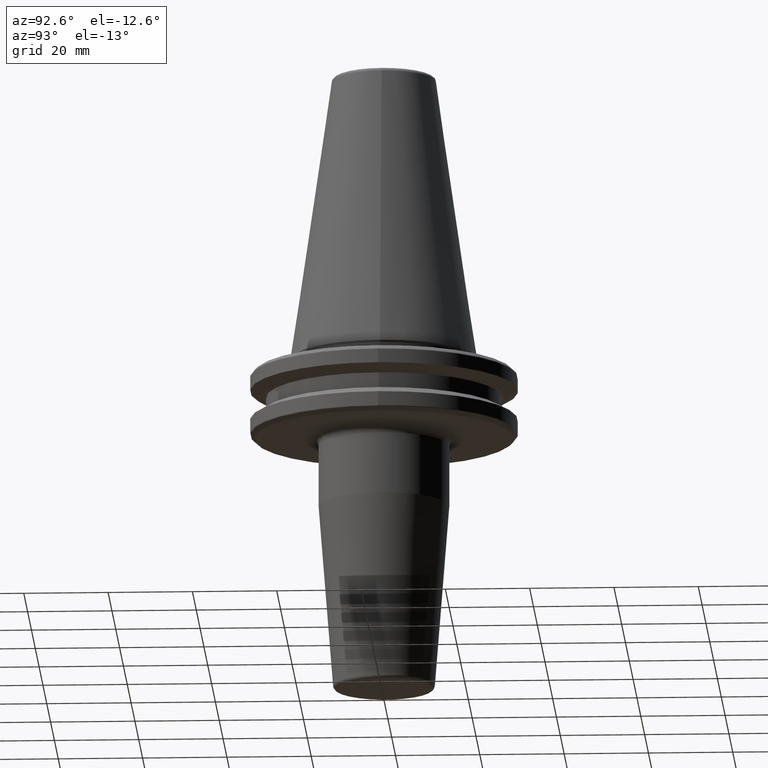
[diagram: clean part render]
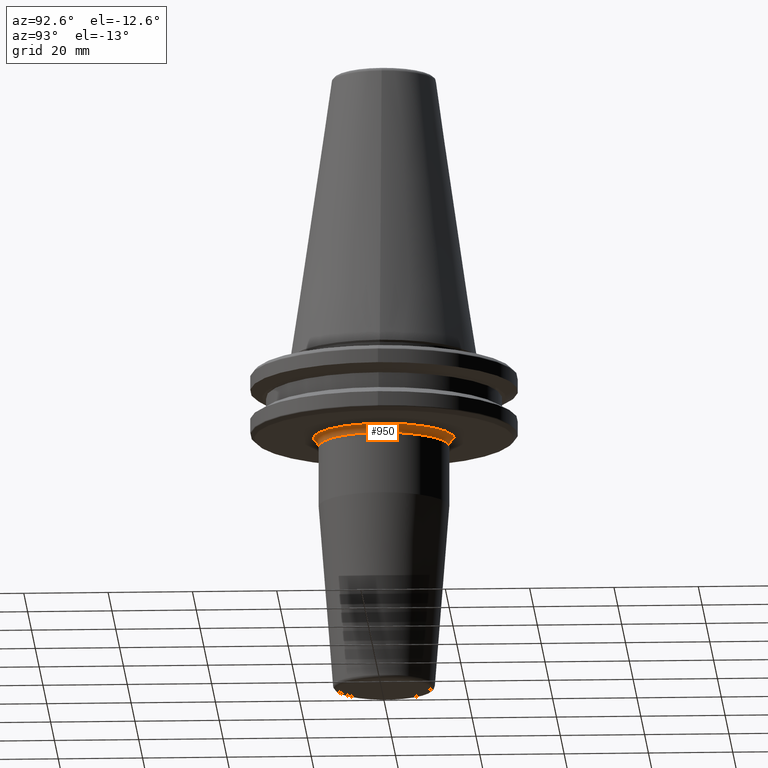
[diagram: same view with one face highlighted and labeled with its STEP entity id]
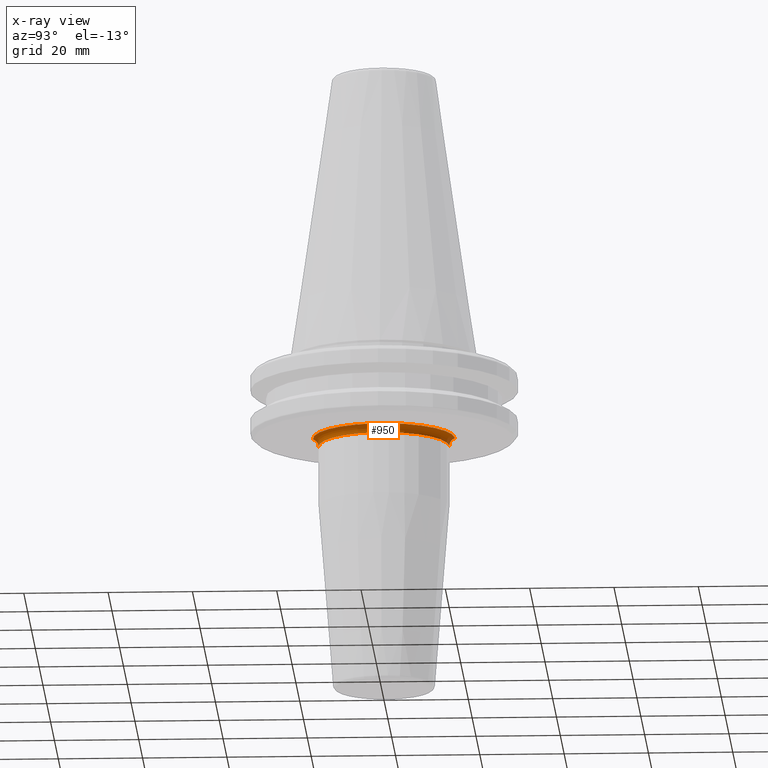
[diagram: x-ray of the same camera — body ghosted, the highlighted face saturated]
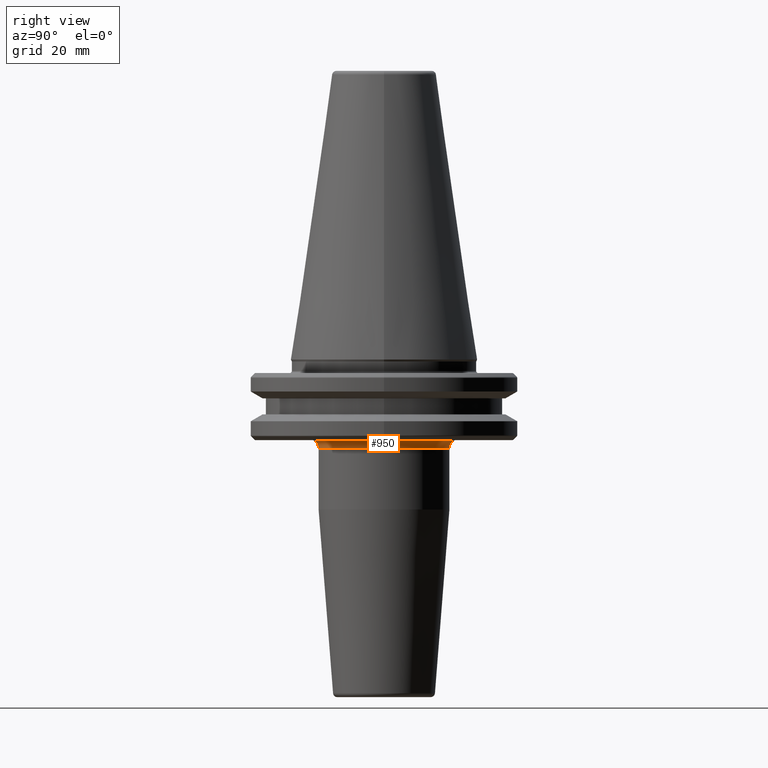
[diagram: same view with one face highlighted and labeled with its STEP entity id]
A machine part, auxiliary view. The second image highlights one B-rep face of the part: STEP entity #950.
The next image is the same camera in x-ray: the body ghosted, the highlighted face saturated — about 0% of this face is hidden behind the body in this view.
A second angle (right view) of the same face is appended — the face is thin or edge-on in the first view.
In plain terms, the highlighted toroidal blend (fillet) surface has major radius 17.5 mm and minor (blend) radius 2 mm.
Its self-contained STEP definition (entity closure, byte-faithful):
#28 = DIRECTION ( 'NONE',  ( -1.224646799147353500E-016, 1.000000000000000000, 0.0000000000000000000 ) ) ;
#50 = DIRECTION ( 'NONE',  ( 1.000000000000000000, 0.0000000000000000000, 0.0000000000000000000 ) ) ;
#67 = ORIENTED_EDGE ( 'NONE', *, *, #995, .T. ) ;
#71 = AXIS2_PLACEMENT_3D ( 'NONE', #1140, #864, #28 ) ;
#72 = ORIENTED_EDGE ( 'NONE', *, *, #781, .F. ) ;
#84 = CIRCLE ( 'NONE', #71, 2.000000000000001800 ) ;
#96 = AXIS2_PLACEMENT_3D ( 'NONE', #125, #805, #232 ) ;
#125 = CARTESIAN_POINT ( 'NONE',  ( 0.0000000000000000000, 17.50000000000000000, -20.98284271247461100 ) ) ;
#129 = EDGE_CURVE ( 'NONE', #168, #1122, #571, .T. ) ;
#168 = VERTEX_POINT ( 'NONE', #323 ) ;
#199 = DIRECTION ( 'NONE',  ( -0.0000000000000000000, 2.829168385244881300E-016, -1.000000000000000000 ) ) ;
#216 = CARTESIAN_POINT ( 'NONE',  ( 0.0000000000000000000, -1.670378735265370500E-014, -20.98284271247461400 ) ) ;
#232 = DIRECTION ( 'NONE',  ( 0.0000000000000000000, 0.0000000000000000000, 1.000000000000000000 ) ) ;
#253 = AXIS2_PLACEMENT_3D ( 'NONE', #924, #1027, #50 ) ;
#304 = DIRECTION ( 'NONE',  ( 0.0000000000000000000, 1.000000000000000000, 2.238352872228135700E-016 ) ) ;
#323 = CARTESIAN_POINT ( 'NONE',  ( 0.0000000000000000000, 16.82553478956934300, -19.10000000000000500 ) ) ;
#367 = VERTEX_POINT ( 'NONE', #897 ) ;
#377 = EDGE_LOOP ( 'NONE', ( #72, #642, #67, #1256 ) ) ;
#447 = FACE_OUTER_BOUND ( 'NONE', #377, .T. ) ;
#455 = CARTESIAN_POINT ( 'NONE',  ( 2.060533732398856700E-015, -16.82553478956939200, -19.10000000000000500 ) ) ;
#466 = AXIS2_PLACEMENT_3D ( 'NONE', #775, #199, #879 ) ;
#571 = CIRCLE ( 'NONE', #253, 16.82553478956936700 ) ;
#642 = ORIENTED_EDGE ( 'NONE', *, *, #1249, .F. ) ;
#664 = TOROIDAL_SURFACE ( 'NONE', #466, 17.50000000000001800, 2.000000000000001800 ) ;
#775 = CARTESIAN_POINT ( 'NONE',  ( 0.0000000000000000000, -1.734723475976807100E-014, -20.98284271247461400 ) ) ;
#781 = EDGE_CURVE ( 'NONE', #946, #1122, #84, .T. ) ;
#805 = DIRECTION ( 'NONE',  ( -1.000000000000000000, 0.0000000000000000000, 0.0000000000000000000 ) ) ;
#864 = DIRECTION ( 'NONE',  ( 1.000000000000000000, 1.224646799147353200E-016, 3.464732007239029900E-032 ) ) ;
#879 = DIRECTION ( 'NONE',  ( 0.0000000000000000000, 1.000000000000000000, 2.829168385244881300E-016 ) ) ;
#896 = DIRECTION ( 'NONE',  ( -0.0000000000000000000, 2.829168385244881300E-016, -1.000000000000000000 ) ) ;
#897 = CARTESIAN_POINT ( 'NONE',  ( 0.0000000000000000000, 15.50000000000000000, -20.98284271247461100 ) ) ;
#909 = AXIS2_PLACEMENT_3D ( 'NONE', #216, #896, #304 ) ;
#924 = CARTESIAN_POINT ( 'NONE',  ( 0.0000000000000000000, -1.734723475976807100E-014, -19.10000000000000500 ) ) ;
#946 = VERTEX_POINT ( 'NONE', #1174 ) ;
#950 = ADVANCED_FACE ( 'NONE', ( #447 ), #664, .F. ) ;
#995 = EDGE_CURVE ( 'NONE', #367, #168, #1057, .T. ) ;
#1025 = CIRCLE ( 'NONE', #909, 15.50000000000001800 ) ;
#1027 = DIRECTION ( 'NONE',  ( 0.0000000000000000000, 0.0000000000000000000, -1.000000000000000000 ) ) ;
#1057 = CIRCLE ( 'NONE', #96, 2.000000000000001800 ) ;
#1122 = VERTEX_POINT ( 'NONE', #455 ) ;
#1140 = CARTESIAN_POINT ( 'NONE',  ( 2.143131898507870200E-015, -17.50000000000003600, -20.98284271247461800 ) ) ;
#1174 = CARTESIAN_POINT ( 'NONE',  ( 1.898202538678399900E-015, -15.50000000000003400, -20.98284271247461800 ) ) ;
#1249 = EDGE_CURVE ( 'NONE', #367, #946, #1025, .T. ) ;
#1256 = ORIENTED_EDGE ( 'NONE', *, *, #129, .T. ) ;